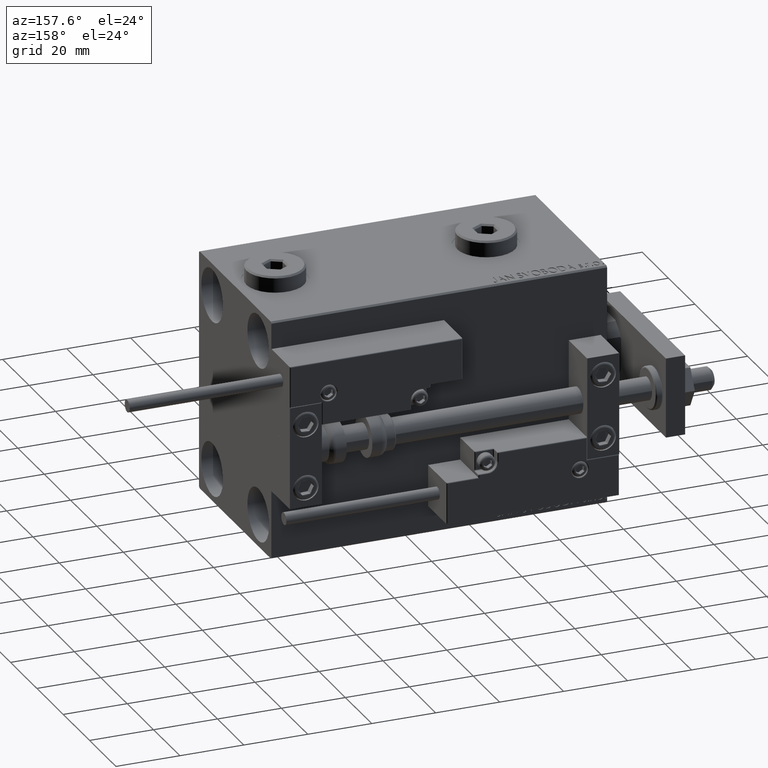
[diagram: clean part render]
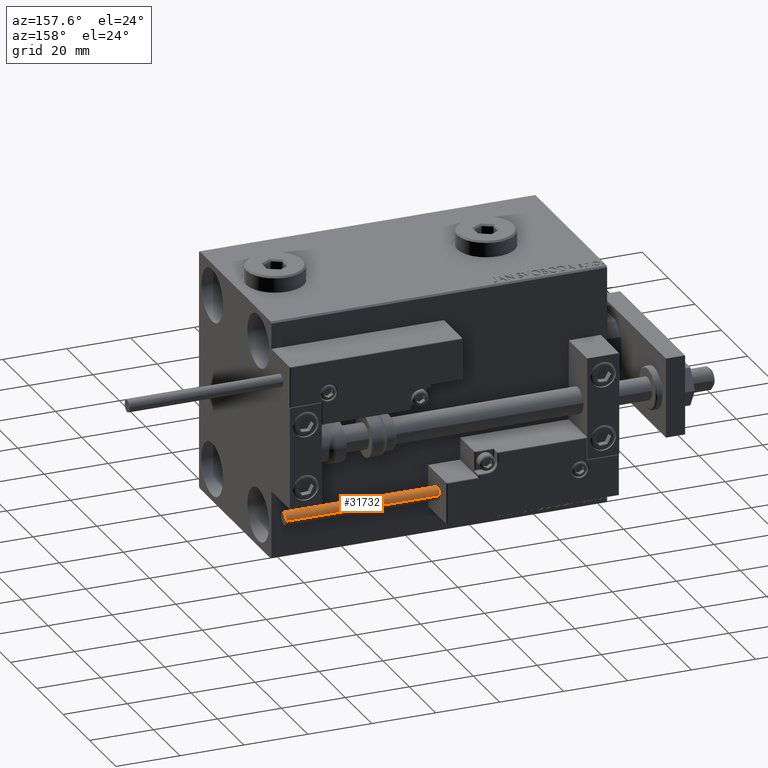
[diagram: same view with one face highlighted and labeled with its STEP entity id]
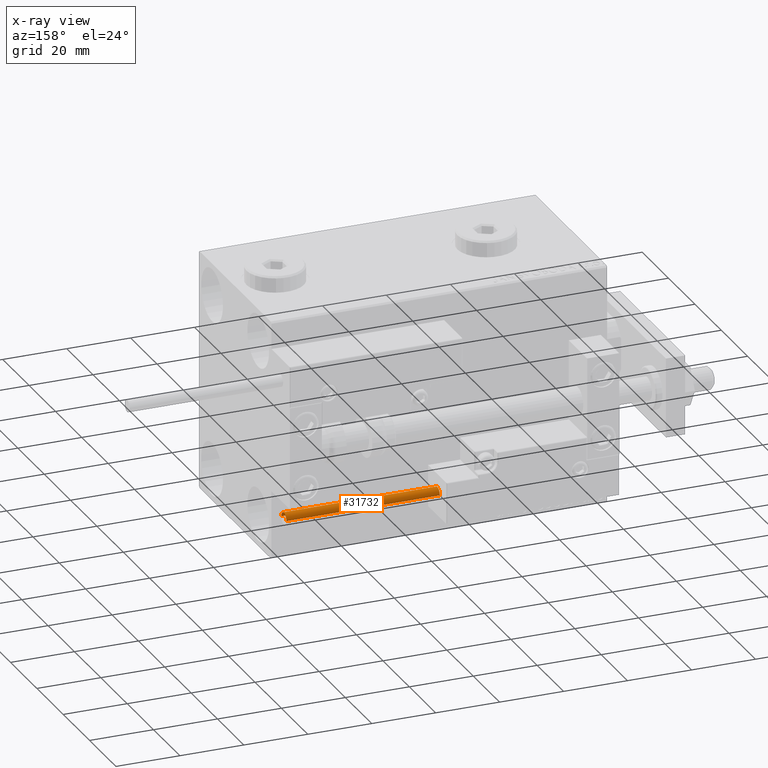
[diagram: x-ray of the same camera — body ghosted, the highlighted face saturated]
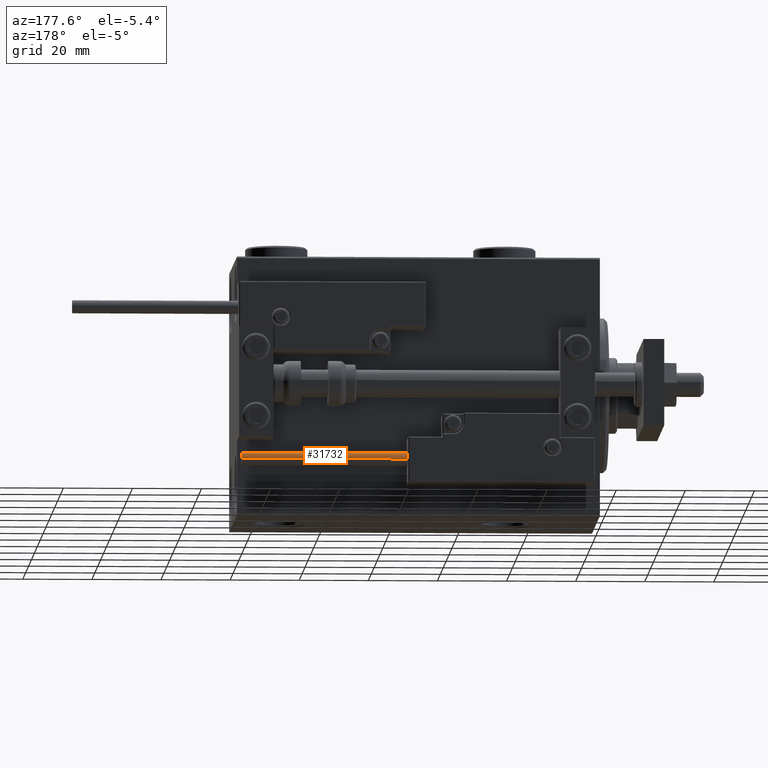
[diagram: same view with one face highlighted and labeled with its STEP entity id]
A machine part, auxiliary view. The second image highlights one B-rep face of the part: STEP entity #31732.
The next image is the same camera in x-ray: the body ghosted, the highlighted face saturated — about 0% of this face is hidden behind the body in this view.
A second angle (auxiliary view) of the same face is appended — the face is thin or edge-on in the first view.
In plain terms, the highlighted cylindrical surface (edge-blend (fillet) strip) has radius 1.9 mm, axis along (-1, 0, 0).
Its self-contained STEP definition (entity closure, byte-faithful):
#804 = DIRECTION ( 'NONE',  ( 1.000000000000000000, 0.000000000000000000, 0.000000000000000000 ) ) ;
#983 = CARTESIAN_POINT ( 'NONE',  ( 0.000000000000000000, 0.000000000000000000, 48.00000000000000000 ) ) ;
#4139 = ORIENTED_EDGE ( 'NONE', *, *, #10741, .T. ) ;
#4727 = CARTESIAN_POINT ( 'NONE',  ( 0.000000000000000000, 0.000000000000000000, 0.000000000000000000 ) ) ;
#7672 = VECTOR ( 'NONE', #17796, 1000.000000000000000 ) ;
#8238 = CARTESIAN_POINT ( 'NONE',  ( 1.899999999999999467, 2.326828918379970872E-16, 48.00000000000000000 ) ) ;
#9082 = DIRECTION ( 'NONE',  ( -1.000000000000000000, 0.000000000000000000, 0.000000000000000000 ) ) ;
#9188 = ORIENTED_EDGE ( 'NONE', *, *, #32926, .F. ) ;
#9233 = VERTEX_POINT ( 'NONE', #19545 ) ;
#9294 = CIRCLE ( 'NONE', #21761, 1.899999999999999467 ) ;
#10741 = EDGE_CURVE ( 'NONE', #9233, #19357, #43667, .T. ) ;
#11344 = DIRECTION ( 'NONE',  ( 1.000000000000000000, 0.000000000000000000, 0.000000000000000000 ) ) ;
#12481 = CARTESIAN_POINT ( 'NONE',  ( -1.899999999999999467, 0.000000000000000000, 0.000000000000000000 ) ) ;
#12728 = DIRECTION ( 'NONE',  ( -0.000000000000000000, -0.000000000000000000, -1.000000000000000000 ) ) ;
#13490 = AXIS2_PLACEMENT_3D ( 'NONE', #983, #12728, #9082 ) ;
#15197 = CIRCLE ( 'NONE', #44319, 1.899999999999999467 ) ;
#15491 = DIRECTION ( 'NONE',  ( 0.000000000000000000, 0.000000000000000000, 1.000000000000000000 ) ) ;
#17399 = FACE_OUTER_BOUND ( 'NONE', #29983, .T. ) ;
#17796 = DIRECTION ( 'NONE',  ( -0.000000000000000000, -0.000000000000000000, -1.000000000000000000 ) ) ;
#19357 = VERTEX_POINT ( 'NONE', #36904 ) ;
#19545 = CARTESIAN_POINT ( 'NONE',  ( 1.899999999999999467, 2.326828918379970872E-16, 48.00000000000000000 ) ) ;
#20789 = CYLINDRICAL_SURFACE ( 'NONE', #13490, 1.899999999999999467 ) ;
#21761 = AXIS2_PLACEMENT_3D ( 'NONE', #4727, #36502, #804 ) ;
#23820 = CARTESIAN_POINT ( 'NONE',  ( 0.000000000000000000, 0.000000000000000000, 48.00000000000000000 ) ) ;
#27212 = ORIENTED_EDGE ( 'NONE', *, *, #33142, .F. ) ;
#29983 = EDGE_LOOP ( 'NONE', ( #9188, #4139, #51108, #27212 ) ) ;
#31582 = VERTEX_POINT ( 'NONE', #12481 ) ;
#31732 = ADVANCED_FACE ( 'NONE', ( #17399 ), #20789, .T. ) ;
#32926 = EDGE_CURVE ( 'NONE', #9233, #47267, #15197, .T. ) ;
#33142 = EDGE_CURVE ( 'NONE', #47267, #31582, #46196, .T. ) ;
#33371 = EDGE_CURVE ( 'NONE', #19357, #31582, #9294, .T. ) ;
#34205 = CARTESIAN_POINT ( 'NONE',  ( -1.899999999999999467, 0.000000000000000000, 48.00000000000000000 ) ) ;
#36502 = DIRECTION ( 'NONE',  ( 0.000000000000000000, 0.000000000000000000, 1.000000000000000000 ) ) ;
#36589 = DIRECTION ( 'NONE',  ( -0.000000000000000000, -0.000000000000000000, -1.000000000000000000 ) ) ;
#36904 = CARTESIAN_POINT ( 'NONE',  ( 1.899999999999999467, 2.326828918379970872E-16, 0.000000000000000000 ) ) ;
#43667 = LINE ( 'NONE', #8238, #46229 ) ;
#44319 = AXIS2_PLACEMENT_3D ( 'NONE', #23820, #15491, #11344 ) ;
#46196 = LINE ( 'NONE', #34205, #7672 ) ;
#46229 = VECTOR ( 'NONE', #36589, 1000.000000000000000 ) ;
#47267 = VERTEX_POINT ( 'NONE', #48771 ) ;
#48771 = CARTESIAN_POINT ( 'NONE',  ( -1.899999999999999467, 0.000000000000000000, 48.00000000000000000 ) ) ;
#51108 = ORIENTED_EDGE ( 'NONE', *, *, #33371, .T. ) ;